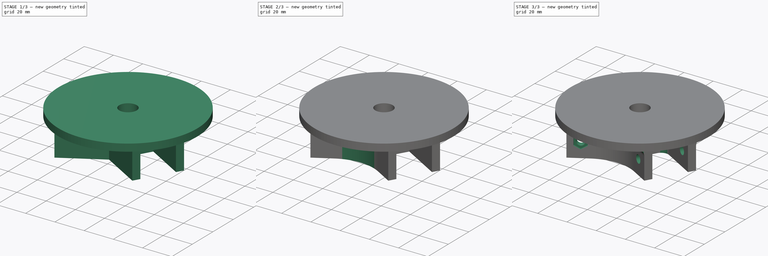
[diagram: build sequence overview — one tinted view per stage of 3, left to right]
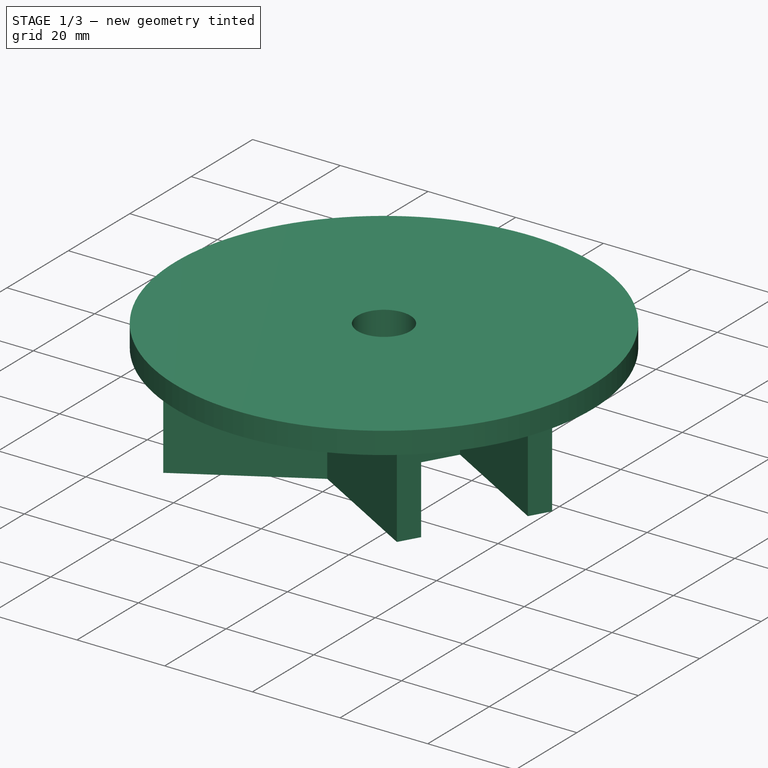
[diagram: stage 1 of 3 — iso view after this stage's code; geometry added in this stage tinted green]
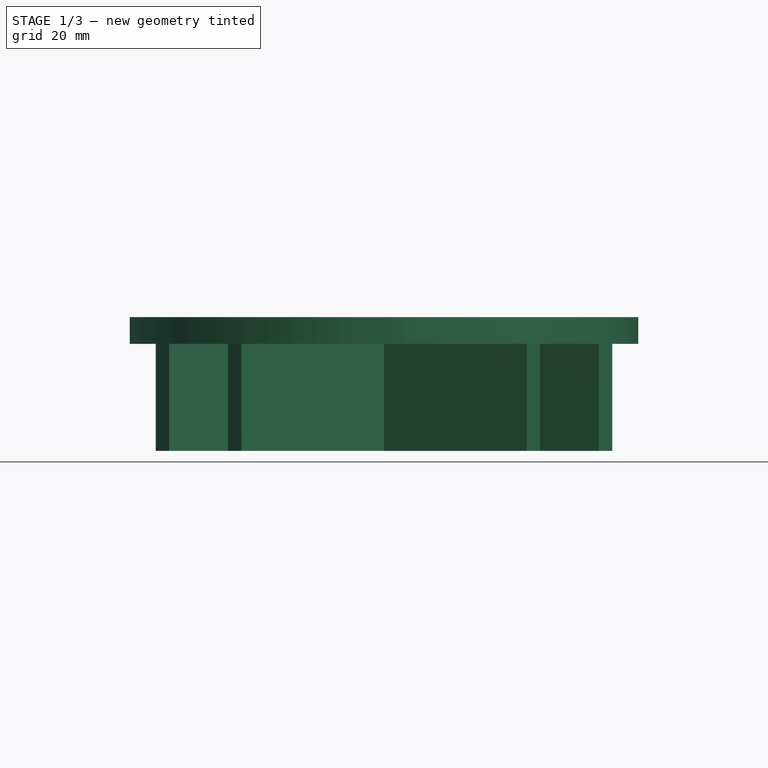
[diagram: stage 1 of 3 — front view after this stage's code; geometry added in this stage tinted green]
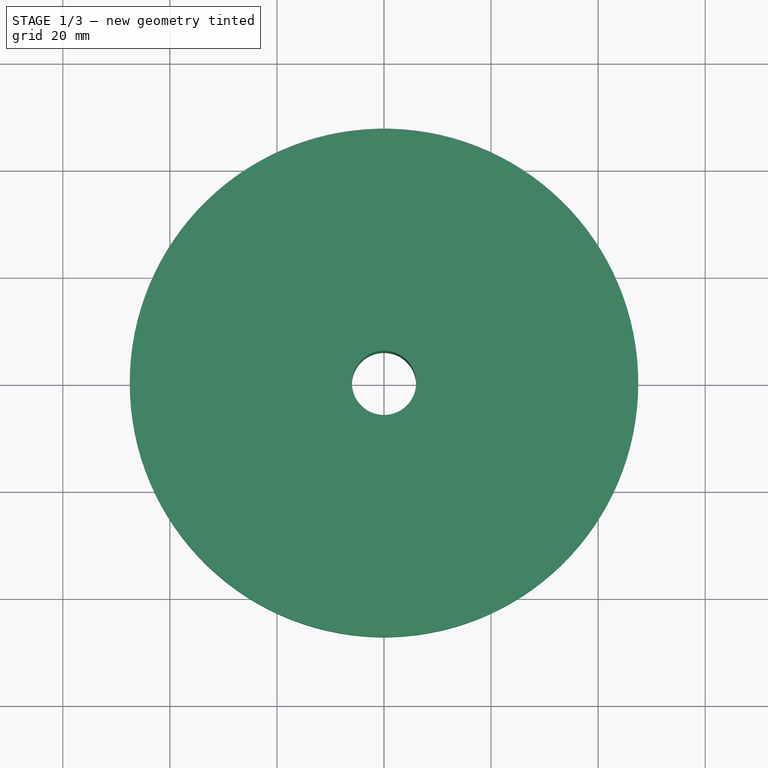
[diagram: stage 1 of 3 — top view after this stage's code; geometry added in this stage tinted green]
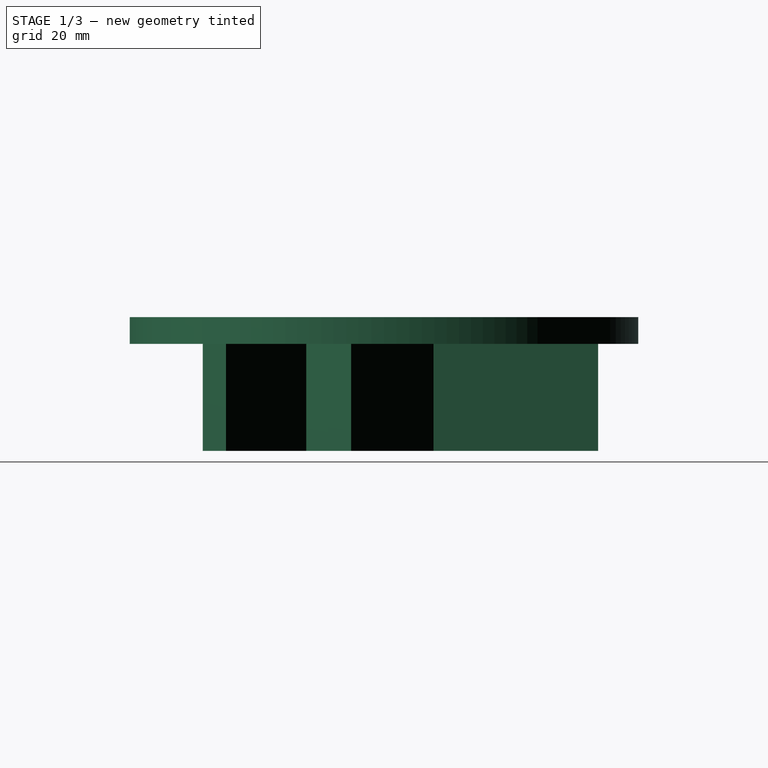
[diagram: stage 1 of 3 — right view after this stage's code; geometry added in this stage tinted green]
FCSTD DOCUMENT  (FreeCAD 1.0R39109 (Git))
Label: Tripod Head
License: All rights reserved
LicenseURL: http://en.wikipedia.org/wiki/All_rights_reserved
objects: Sketcher::SketchObject×4, PartDesign::Pad×2, PartDesign::Fillet×2, PartDesign::Pocket×2, PartDesign::PolarPattern×1, PartDesign::Body×1
note: 29 computed .brp shape members not serialized (recipe doc carries the construction recipe); baked Part::Feature solids carry a one-line shape summary decoded from their .brp

FEATURE [Sketcher::SketchObject] Sketch
  ArcFitTolerance = 1e-06
  AttachmentSupport = -> [XY_Plane]
  FullyConstrained = true
  MakeInternals = false
  MapMode = 5
  sketch-geometry (2):
    g0: Circle CenterX=0 CenterY=0 CenterZ=0 NormalX=0 NormalY=0 NormalZ=1 AngleXU=0 Radius=6
    g1: Circle CenterX=0 CenterY=0 CenterZ=0 NormalX=0 NormalY=0 NormalZ=1 AngleXU=0 Radius=47.5
  constraints (4):
    c: Coincident(g0,g-1)
    c: Coincident(g1,g0)
    c: Diameter(g1) = 95  'OD'
    c: Diameter(g0) = 12  'ID'
FEATURE [PartDesign::Pad] Pad
  Direction = (0,0,1)
  Length = 5
  Length2 = 10
  Profile = -> Sketch
  ReferenceAxis = -> Sketch [N_Axis]
  Suppressed = false
  Type = 0
FEATURE [Sketcher::SketchObject] Sketch001
  ArcFitTolerance = 1e-06
  AttachmentSupport = -> [XY_Plane]
  ExternalGeometry = -> [Pad]
  FullyConstrained = true
  MakeInternals = false
  MapMode = 5
  sketch-geometry (24):
    g0: Circle CenterX=0 CenterY=0 CenterZ=0 NormalX=0 NormalY=0 NormalZ=1 AngleXU=0 Radius=6
    g1: LineSegment StartX=16 StartY=9.2376 StartZ=0 EndX=16 EndY=40 EndZ=0
    g2: LineSegment StartX=16 StartY=40 StartZ=0 EndX=11 EndY=40 EndZ=0
    g3: LineSegment StartX=11 StartY=40 StartZ=0 EndX=11 EndY=10 EndZ=0
    g4: LineSegment StartX=11 StartY=10 StartZ=0 EndX=-11 EndY=10 EndZ=0
    g5: LineSegment StartX=-11 StartY=10 StartZ=0 EndX=-11 EndY=40 EndZ=0
    g6: LineSegment StartX=-11 StartY=40 StartZ=0 EndX=-16 EndY=40 EndZ=0
    g7: LineSegment StartX=-16 StartY=40 StartZ=0 EndX=-16 EndY=9.2376 EndZ=0
    g8: LineSegment StartX=-16 StartY=9.2376 StartZ=0 EndX=-42.641 EndY=-6.14359 EndZ=0
    g9: LineSegment StartX=-42.641 StartY=-6.14359 StartZ=0 EndX=-40.141 EndY=-10.4737 EndZ=0
    g10: LineSegment StartX=-40.141 StartY=-10.4737 StartZ=0 EndX=-14.1603 EndY=4.52628 EndZ=0
    g11: LineSegment StartX=-14.1603 StartY=4.52628 StartZ=0 EndX=-3.16025 EndY=-14.5263 EndZ=0
    g12: LineSegment StartX=-3.16025 StartY=-14.5263 StartZ=0 EndX=-29.141 EndY=-29.5263 EndZ=0
    g13: LineSegment StartX=-29.141 StartY=-29.5263 StartZ=0 EndX=-26.641 EndY=-33.8564 EndZ=0
    g14: LineSegment StartX=-26.641 StartY=-33.8564 StartZ=0 EndX=0 EndY=-18.4752 EndZ=0
    g15: LineSegment StartX=0 StartY=-18.4752 StartZ=0 EndX=26.641 EndY=-33.8564 EndZ=0
    g16: LineSegment StartX=26.641 StartY=-33.8564 StartZ=0 EndX=29.141 EndY=-29.5263 EndZ=0
    g17: LineSegment StartX=29.141 StartY=-29.5263 StartZ=0 EndX=3.16025 EndY=-14.5263 EndZ=0
    g18: LineSegment StartX=3.16025 StartY=-14.5263 StartZ=0 EndX=14.1603 EndY=4.52628 EndZ=0
    g19: LineSegment StartX=14.1603 StartY=4.52628 StartZ=0 EndX=40.141 EndY=-10.4737 EndZ=0
    g20: LineSegment StartX=40.141 StartY=-10.4737 StartZ=0 EndX=42.641 EndY=-6.14359 EndZ=0
    g21: LineSegment StartX=42.641 StartY=-6.14359 StartZ=0 EndX=16 EndY=9.2376 EndZ=0
    g22: Circle [constr] CenterX=0 CenterY=0 CenterZ=0 NormalX=0 NormalY=0 NormalZ=1 AngleXU=0 Radius=10
    g23: Circle [constr] CenterX=0 CenterY=0 CenterZ=0 NormalX=0 NormalY=0 NormalZ=1 AngleXU=0 Radius=43.0813
  constraints (65):
    c: Coincident(g0,g-1)
    c: Vertical(g1)
    c: Coincident(g1,g2)
    c: Horizontal(g2)
    c: Coincident(g2,g3)
    c: Vertical(g3)
    c: Coincident(g3,g4)
    c: Horizontal(g4)
    c: Coincident(g4,g5)
    c: Vertical(g5)
    c: Coincident(g5,g6)
    c: Horizontal(g6)
    c: Coincident(g6,g7)
    c: Vertical(g7)
    c: Coincident(g7,g8)
    c: Coincident(g8,g9)
    c: Coincident(g9,g10)
    c: Coincident(g10,g11)
    c: Coincident(g11,g12)
    c: Coincident(g12,g13)
    c: Coincident(g13,g14)
    c: Coincident(g14,g15)
    c: Coincident(g15,g16)
    c: Coincident(g16,g17)
    c: Coincident(g17,g18)
    c: Coincident(g18,g19)
    c: Coincident(g19,g20)
    c: Coincident(g20,g21)
    c: Coincident(g21,g1)
    c: Angle(g21,g1) = 2.0944
    c: Angle(g7,g8) = 2.0944
    c: Angle(g14,g15) = 2.0944
    c: Parallel(g10,g8)
    c: Parallel(g12,g14)
    c: Parallel(g19,g21)
    c: Parallel(g17,g15)
    c: Parallel(g11,g13)
    c: Parallel(g20,g18)
    c: Perpendicular(g18,g19)
    c: Perpendicular(g10,g11)
    c: Symmetric(g13,g15,g-2)
    c: Equal(g2,g6)
    c: Equal(g6,g9)
    c: Equal(g9,g13)
    c: Equal(g13,g16)
    c: Equal(g16,g20)
    c: Symmetric(g2,g5,g-2)
    c: Tangent(g20,g16)
    c: Tangent(g13,g9)
    c: Coincident(g22,g0)
    c: Tangent(g22,g11)
    c: Tangent(g22,g4)
    c: Symmetric(g10,g18,g-2)
    c: PointOnObject(g14,g-2)
    c: Equal(g3,g17)
    c: Equal(g4,g11)
    c: Coincident(g23,g0)
    c: PointOnObject(g8,g23)
    c: PointOnObject(g15,g23)
    c: Distance(g4,g4) = 22
    c: Distance(g6,g6) = 5
    c: DistanceY(g5,g5) = 30
    c: Diameter(g22) = 20
    c: Equal(g0,g-3)
    c: DistanceY(g-1,g6) = 40  'L'
FEATURE [PartDesign::Pad] Pad001
  BaseFeature = -> Pad
  Direction = (0,0,1)
  Length = 20
  Length2 = 10
  Profile = -> Sketch001
  ReferenceAxis = -> Sketch001 [N_Axis]
  Reversed = true
  Suppressed = false
  Type = 0
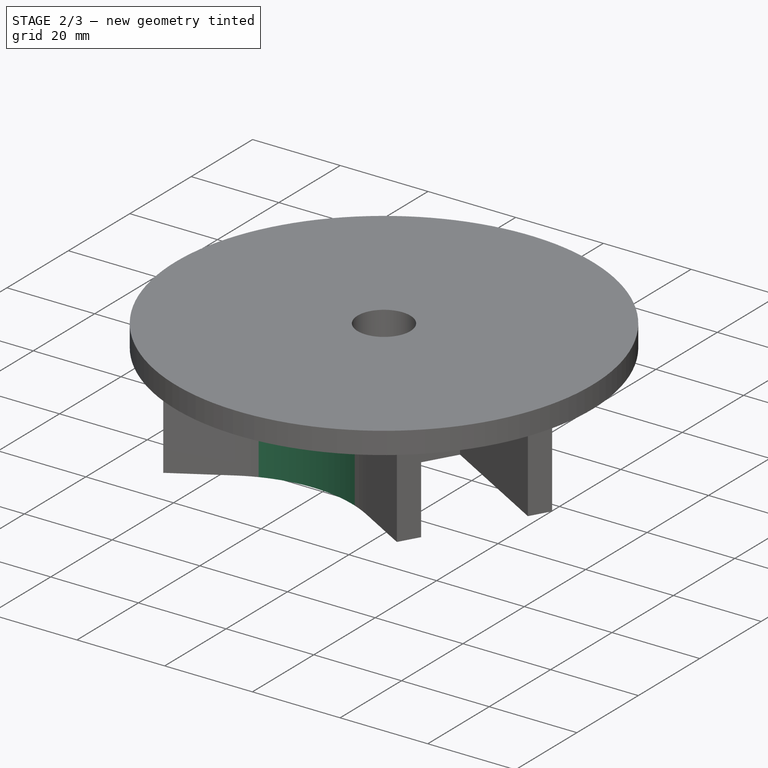
[diagram: stage 2 of 3 — iso view after this stage's code; geometry added in this stage tinted green]
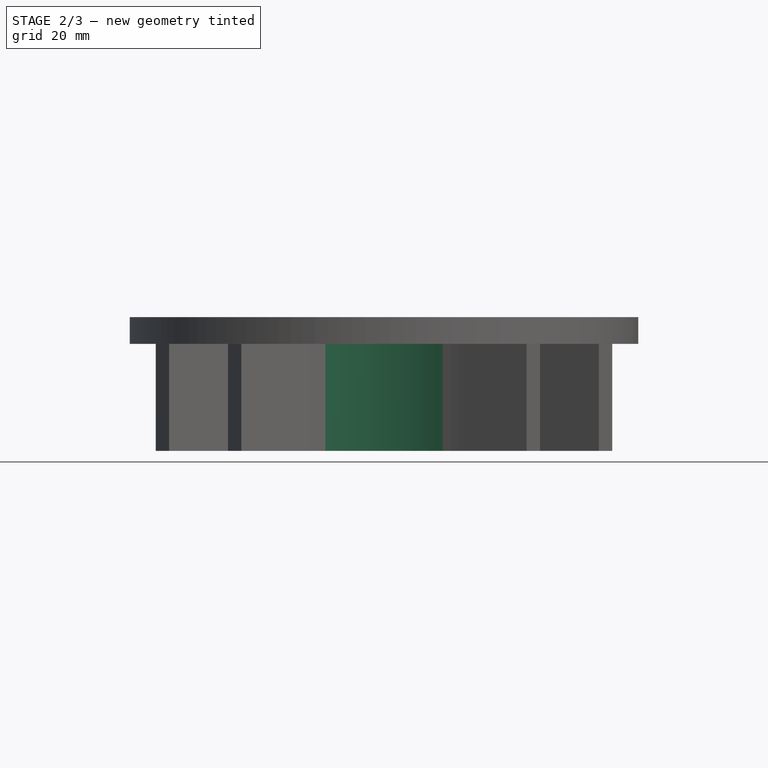
[diagram: stage 2 of 3 — front view after this stage's code; geometry added in this stage tinted green]
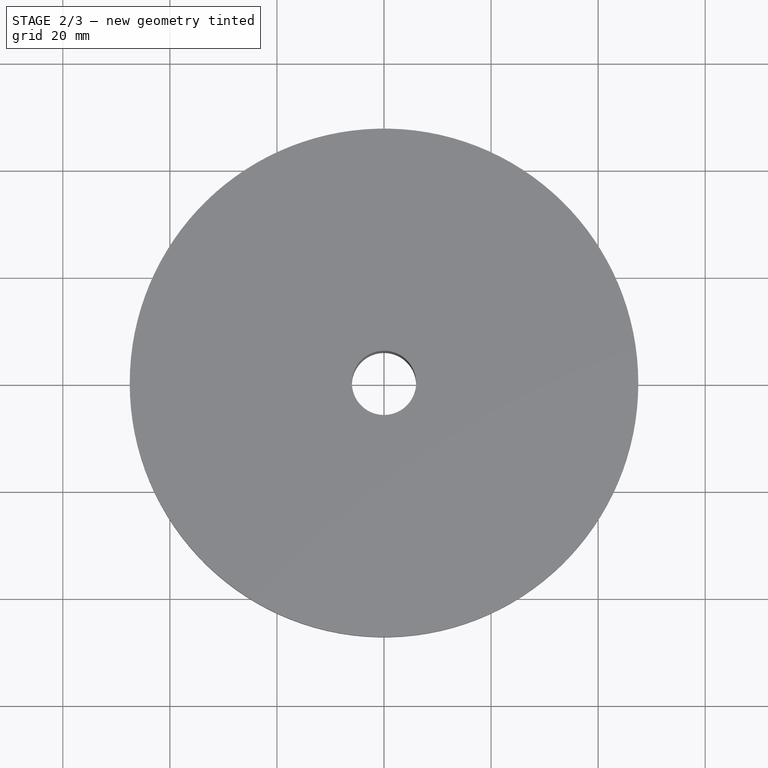
[diagram: stage 2 of 3 — top view after this stage's code; geometry added in this stage tinted green]
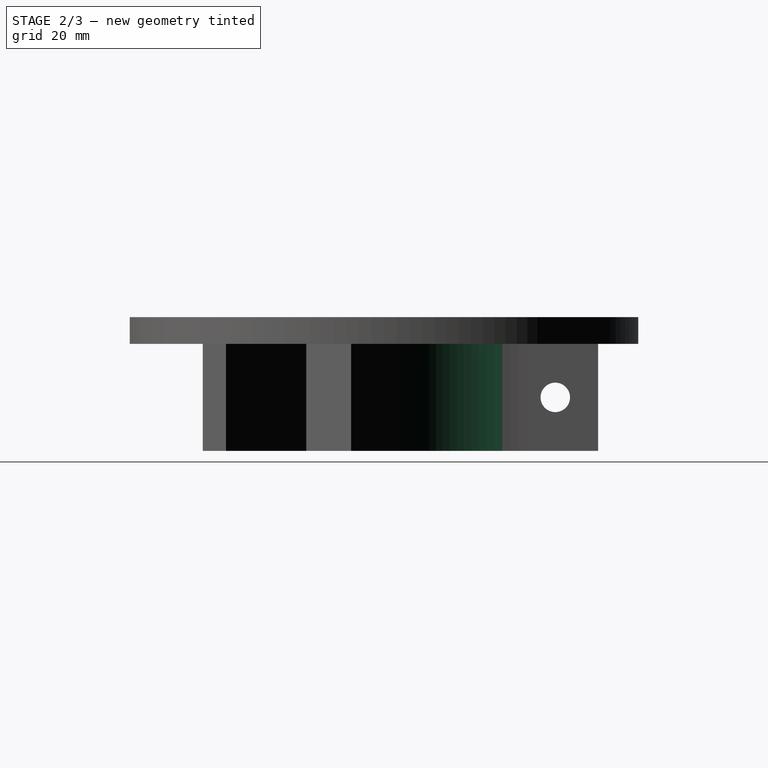
[diagram: stage 2 of 3 — right view after this stage's code; geometry added in this stage tinted green]
FEATURE [PartDesign::Fillet] Fillet
  Base = -> Pad001 [Edge26,Edge39,Edge53]
  BaseFeature = -> Pad001
  Radius = 30
  SupportTransform = false
  Suppressed = false
  UseAllEdges = false
FEATURE [Sketcher::SketchObject] Sketch002
  ArcFitTolerance = 1e-06
  AttachmentSupport = -> [Fillet]
  FullyConstrained = true
  MakeInternals = false
  MapMode = 5
  Placement = pos=(-16,0,0) rot=(0.57735,-0.57735,-0.57735;2.0944rad)
  expr: Constraints[16] = Sketch001.Constraints.L - 8 mm
  sketch-geometry (7):
    g0: LineSegment StartX=-28 StartY=-12.3094 StartZ=0 EndX=-28 EndY=-7.6906 EndZ=0
    g1: LineSegment StartX=-28 StartY=-7.6906 StartZ=0 EndX=-32 EndY=-5.3812 EndZ=0
    g2: LineSegment StartX=-32 StartY=-5.3812 StartZ=0 EndX=-36 EndY=-7.6906 EndZ=0
    g3: LineSegment StartX=-36 StartY=-7.6906 StartZ=0 EndX=-36 EndY=-12.3094 EndZ=0
    g4: LineSegment StartX=-36 StartY=-12.3094 StartZ=0 EndX=-32 EndY=-14.6188 EndZ=0
    g5: LineSegment StartX=-32 StartY=-14.6188 StartZ=0 EndX=-28 EndY=-12.3094 EndZ=0
    g6: Circle [constr] CenterX=-32 CenterY=-10 CenterZ=0 NormalX=0 NormalY=0 NormalZ=1 AngleXU=0 Radius=4.6188
  constraints (18):
    c: Coincident(g0,g1)
    c: Coincident(g1,g2)
    c: Coincident(g2,g3)
    c: Coincident(g3,g4)
    c: Coincident(g4,g5)
    c: Coincident(g5,g0)
    c: Equal(g0, g1-g4) x4
    c: PointOnObject(g0,g6)
    c: PointOnObject(g1,g6)
    c: PointOnObject(g2,g6)
    c: PointOnObject(g3,g6)
    c: PointOnObject(g4,g6)
    c: PointOnObject(g5,g6)
    c: DistanceX(g6,g-1) = 32
    c: DistanceY(g6,g-1) = 10
    c: Vertical(g3)
    c: Distance(g2,g0) = 8
    c: Equal(g5,g4)
FEATURE [PartDesign::Pocket] Pocket
  BaseFeature = -> Fillet
  Direction = (1,0,0)
  Length = 1
  Length2 = 5
  Profile = -> Sketch002
  ReferenceAxis = -> Sketch002 [N_Axis]
  Suppressed = false
  Type = 0
FEATURE [Sketcher::SketchObject] Sketch003
  ArcFitTolerance = 1e-06
  AttachmentSupport = -> [YZ_Plane]
  FullyConstrained = true
  MakeInternals = false
  MapMode = 5
  Placement = pos=(0,0,0) rot=(0.57735,0.57735,0.57735;2.0944rad)
  expr: Constraints[0] = Sketch001.Constraints.L - 8 mm
  sketch-geometry (1):
    g0: Circle CenterX=32 CenterY=-10 CenterZ=0 NormalX=0 NormalY=0 NormalZ=1 AngleXU=0 Radius=2.75
  constraints (3):
    c: DistanceX(g-1,g0) = 32
    c: DistanceY(g0,g-1) = 10
    c: Diameter(g0) = 5.5
FEATURE [PartDesign::Pocket] Pocket001
  BaseFeature = -> Pocket
  Direction = (-1,0,0)
  Length = 5
  Length2 = 5
  Midplane = true
  Profile = -> Sketch003
  ReferenceAxis = -> Sketch003 [N_Axis]
  Suppressed = false
  Type = 1
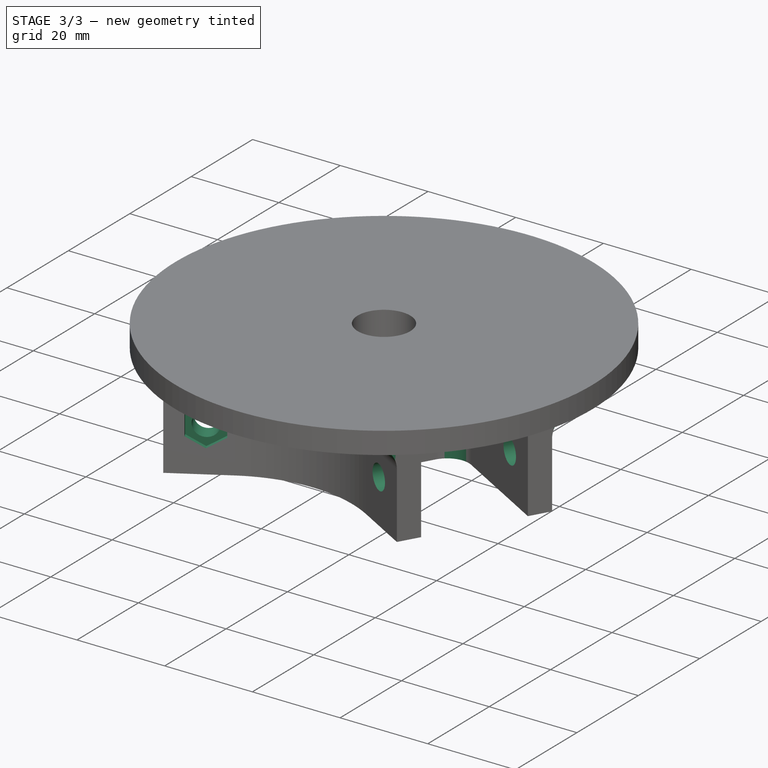
[diagram: stage 3 of 3 — iso view after this stage's code; geometry added in this stage tinted green]
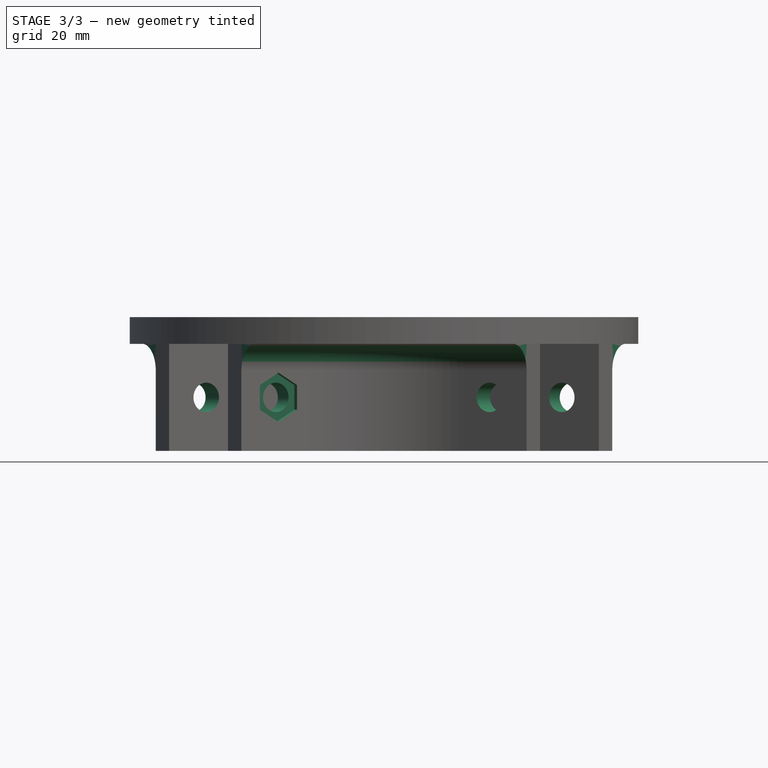
[diagram: stage 3 of 3 — front view after this stage's code; geometry added in this stage tinted green]
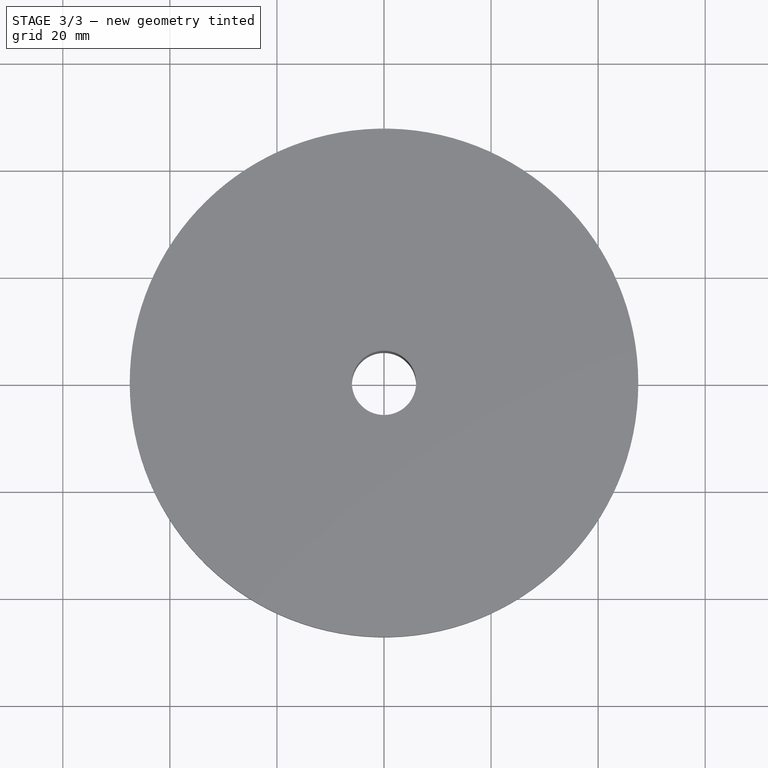
[diagram: stage 3 of 3 — top view after this stage's code; geometry added in this stage tinted green]
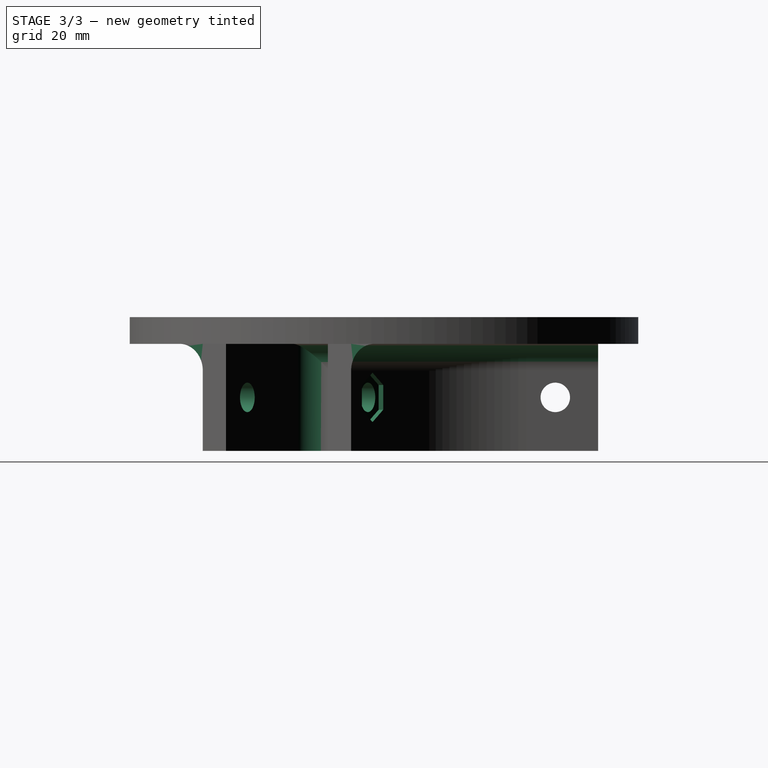
[diagram: stage 3 of 3 — right view after this stage's code; geometry added in this stage tinted green]
FEATURE [PartDesign::PolarPattern] PolarPattern
  Angle = 360
  Axis = -> Z_Axis
  BaseFeature = -> Pocket001
  Mode = 0
  Occurrences = 3
  Offset = 120
  Originals = -> [Pocket,Pocket001]
  Suppressed = false
  TransformMode = 0
FEATURE [PartDesign::Fillet] Fillet001
  Base = -> PolarPattern [Edge49,Edge55,Edge43,Edge47,Edge93,Edge97,Edge23,Edge7,Edge10,Edge2,Edge15,Edge18]
  BaseFeature = -> PolarPattern
  Radius = 5
  SupportTransform = false
  Suppressed = false
  UseAllEdges = false
FEATURE [PartDesign::Body] Body  label="Trupod Head"
  AllowCompound = false
  Group = -> [Sketch,Pad,Sketch001,Pad001,Fillet,Sketch002,Pocket,Sketch003,Pocket001,PolarPattern,Fillet001]
  Origin = -> Origin
  Tip = -> Fillet001
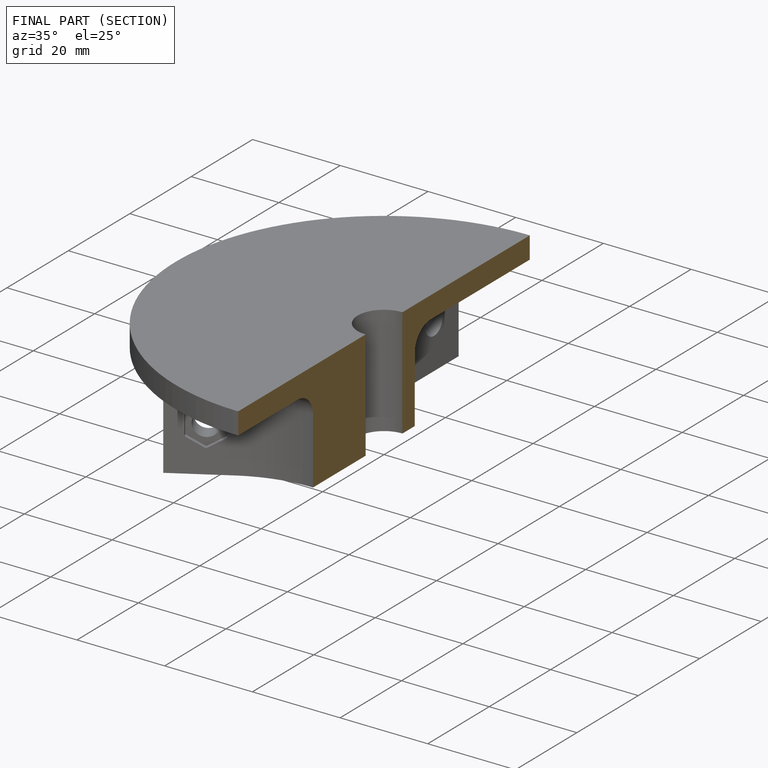
[diagram: finished part — half-section view (interior)]
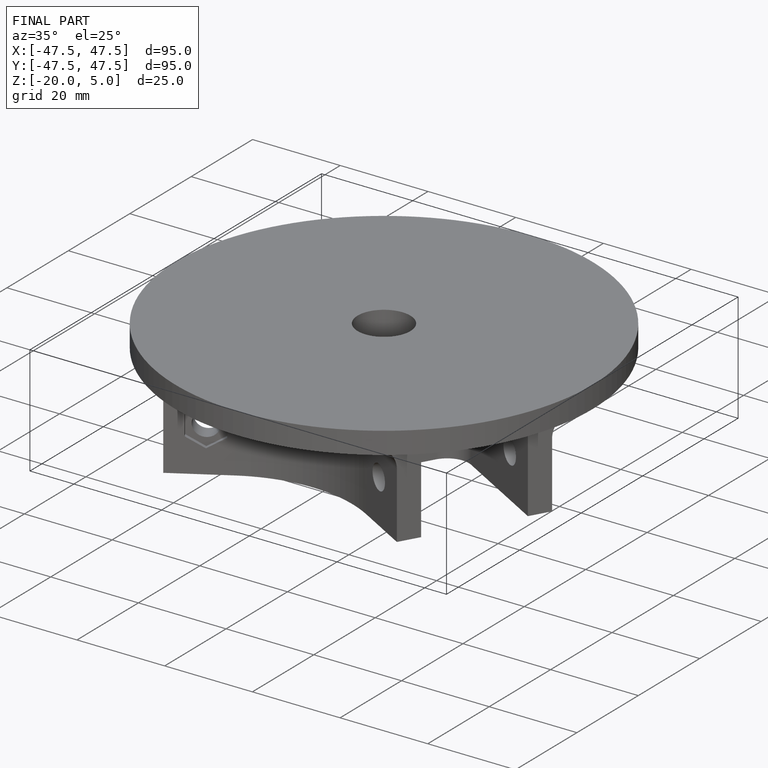
[diagram: finished part — iso view with bounding-box wireframe]
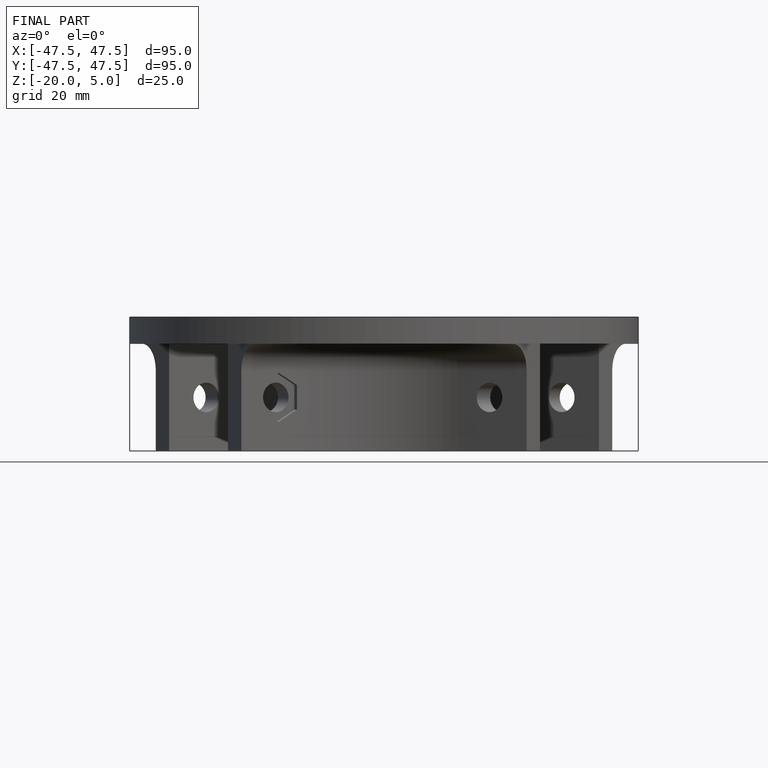
[diagram: finished part — front view with bounding-box wireframe]
